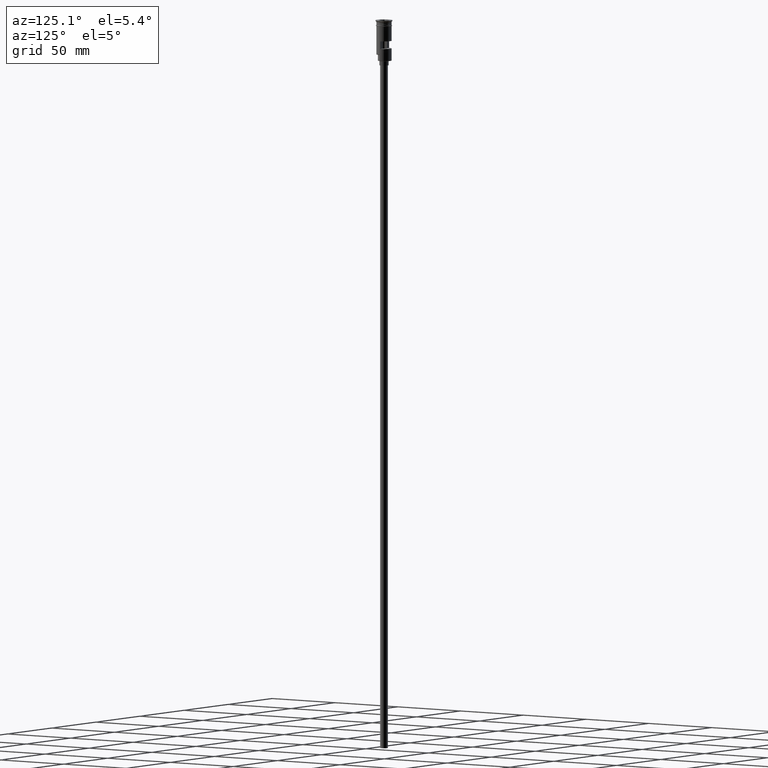
[diagram: clean part render]
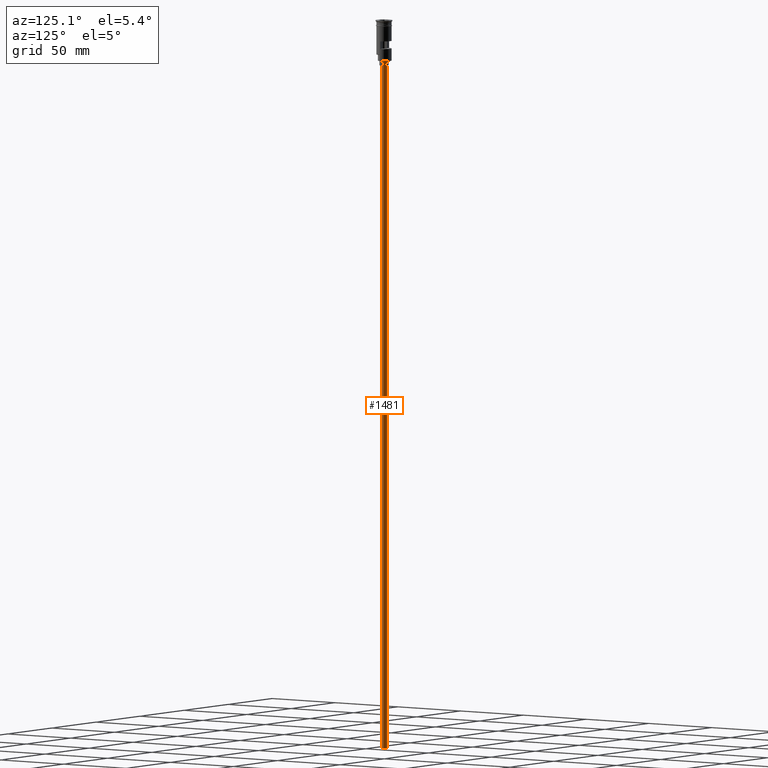
[diagram: same view with one face highlighted and labeled with its STEP entity id]
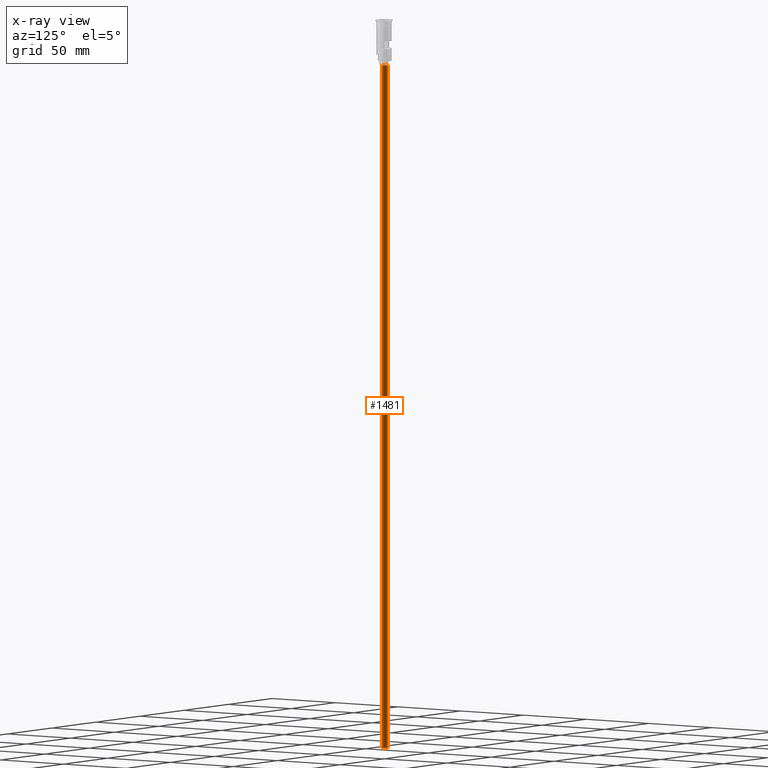
[diagram: x-ray of the same camera — body ghosted, the highlighted face saturated]
A machine part, auxiliary view. The second image highlights one B-rep face of the part: STEP entity #1481.
The next image is the same camera in x-ray: the body ghosted, the highlighted face saturated — about 0% of this face is hidden behind the body in this view.
In plain terms, the highlighted cylindrical surface (edge-blend (fillet) strip) has radius 2.5 mm, axis along (-0, -0, 1).
Its self-contained STEP definition (entity closure, byte-faithful):
#13 = VECTOR ( 'NONE', #25, 1000.000000000000000 ) ;
#25 = DIRECTION ( 'NONE',  ( -0.000000000000000000, -0.000000000000000000, 1.000000000000000000 ) ) ;
#51 = ORIENTED_EDGE ( 'NONE', *, *, #1075, .F. ) ;
#70 = CARTESIAN_POINT ( 'NONE',  ( 2.500000000000000000, 0.000000000000000000, -476.5000000000000568 ) ) ;
#110 = ORIENTED_EDGE ( 'NONE', *, *, #314, .T. ) ;
#166 = ORIENTED_EDGE ( 'NONE', *, *, #229, .T. ) ;
#229 = EDGE_CURVE ( 'NONE', #1548, #232, #1594, .T. ) ;
#232 = VERTEX_POINT ( 'NONE', #1368 ) ;
#308 = DIRECTION ( 'NONE',  ( -0.000000000000000000, -0.000000000000000000, 1.000000000000000000 ) ) ;
#314 = EDGE_CURVE ( 'NONE', #1511, #1548, #1029, .T. ) ;
#361 = CARTESIAN_POINT ( 'NONE',  ( 0.000000000000000000, 0.000000000000000000, -29.50000000000000000 ) ) ;
#430 = EDGE_CURVE ( 'NONE', #933, #232, #617, .T. ) ;
#604 = DIRECTION ( 'NONE',  ( -1.000000000000000000, 0.000000000000000000, 0.000000000000000000 ) ) ;
#617 = LINE ( 'NONE', #1134, #13 ) ;
#632 = CARTESIAN_POINT ( 'NONE',  ( -2.500000000000000000, 3.061616997868383141E-16, -476.5000000000000568 ) ) ;
#671 = CIRCLE ( 'NONE', #1337, 2.500000000000000000 ) ;
#699 = AXIS2_PLACEMENT_3D ( 'NONE', #929, #308, #816 ) ;
#752 = DIRECTION ( 'NONE',  ( -0.000000000000000000, -0.000000000000000000, 1.000000000000000000 ) ) ;
#816 = DIRECTION ( 'NONE',  ( 1.000000000000000000, 0.000000000000000000, 0.000000000000000000 ) ) ;
#862 = EDGE_LOOP ( 'NONE', ( #51, #110, #166, #1057 ) ) ;
#863 = AXIS2_PLACEMENT_3D ( 'NONE', #361, #957, #604 ) ;
#929 = CARTESIAN_POINT ( 'NONE',  ( 0.000000000000000000, 0.000000000000000000, -476.5000000000000568 ) ) ;
#933 = VERTEX_POINT ( 'NONE', #70 ) ;
#936 = VECTOR ( 'NONE', #752, 1000.000000000000000 ) ;
#957 = DIRECTION ( 'NONE',  ( 0.000000000000000000, 0.000000000000000000, -1.000000000000000000 ) ) ;
#1029 = LINE ( 'NONE', #632, #936 ) ;
#1055 = CYLINDRICAL_SURFACE ( 'NONE', #699, 2.500000000000000000 ) ;
#1057 = ORIENTED_EDGE ( 'NONE', *, *, #430, .F. ) ;
#1075 = EDGE_CURVE ( 'NONE', #1511, #933, #671, .T. ) ;
#1098 = DIRECTION ( 'NONE',  ( 0.000000000000000000, 0.000000000000000000, -1.000000000000000000 ) ) ;
#1134 = CARTESIAN_POINT ( 'NONE',  ( 2.500000000000000000, 0.000000000000000000, -476.5000000000000568 ) ) ;
#1337 = AXIS2_PLACEMENT_3D ( 'NONE', #1384, #1098, #1460 ) ;
#1368 = CARTESIAN_POINT ( 'NONE',  ( 2.500000000000000000, 0.000000000000000000, -29.50000000000000000 ) ) ;
#1384 = CARTESIAN_POINT ( 'NONE',  ( 0.000000000000000000, 0.000000000000000000, -476.5000000000000568 ) ) ;
#1441 = FACE_OUTER_BOUND ( 'NONE', #862, .T. ) ;
#1460 = DIRECTION ( 'NONE',  ( -1.000000000000000000, 0.000000000000000000, 0.000000000000000000 ) ) ;
#1481 = ADVANCED_FACE ( 'NONE', ( #1441 ), #1055, .T. ) ;
#1485 = CARTESIAN_POINT ( 'NONE',  ( -2.500000000000000000, 3.061616997868383141E-16, -29.50000000000000000 ) ) ;
#1496 = CARTESIAN_POINT ( 'NONE',  ( -2.500000000000000000, 3.061616997868383141E-16, -476.5000000000000568 ) ) ;
#1511 = VERTEX_POINT ( 'NONE', #1496 ) ;
#1548 = VERTEX_POINT ( 'NONE', #1485 ) ;
#1594 = CIRCLE ( 'NONE', #863, 2.500000000000000000 ) ;